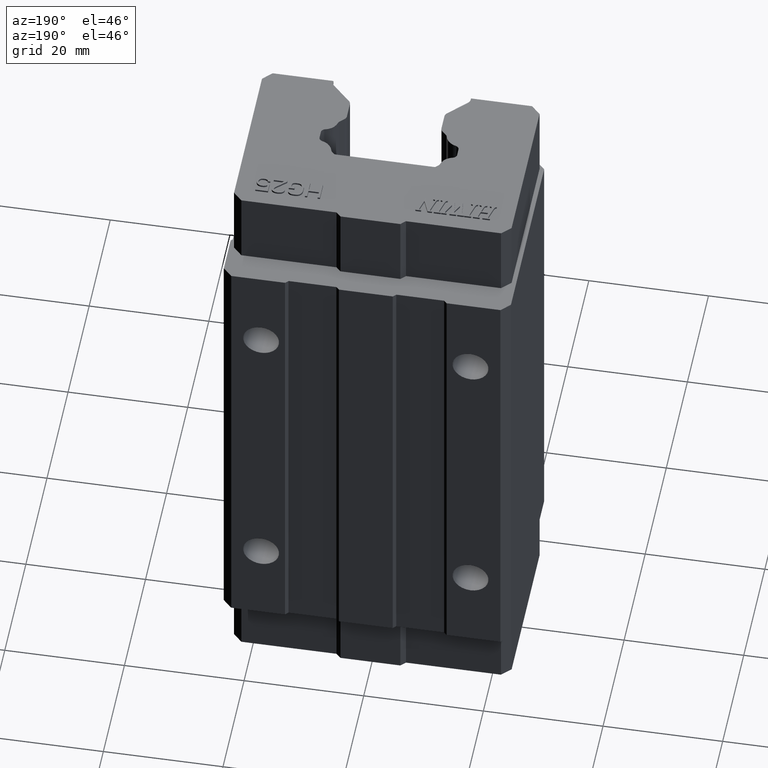
[diagram: clean part render]
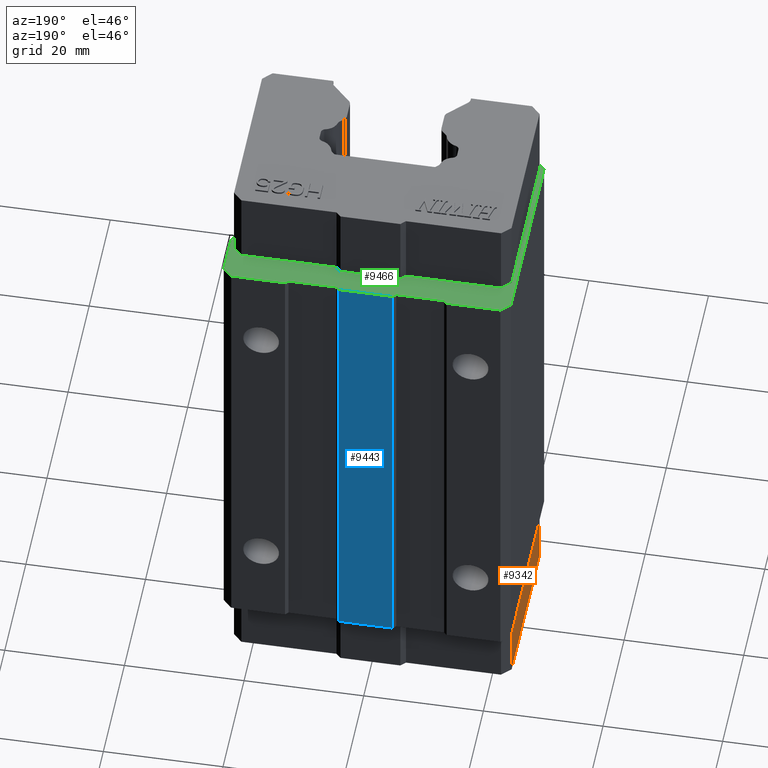
[diagram: same view with three faces highlighted in distinct colors, each labeled with its STEP entity id]
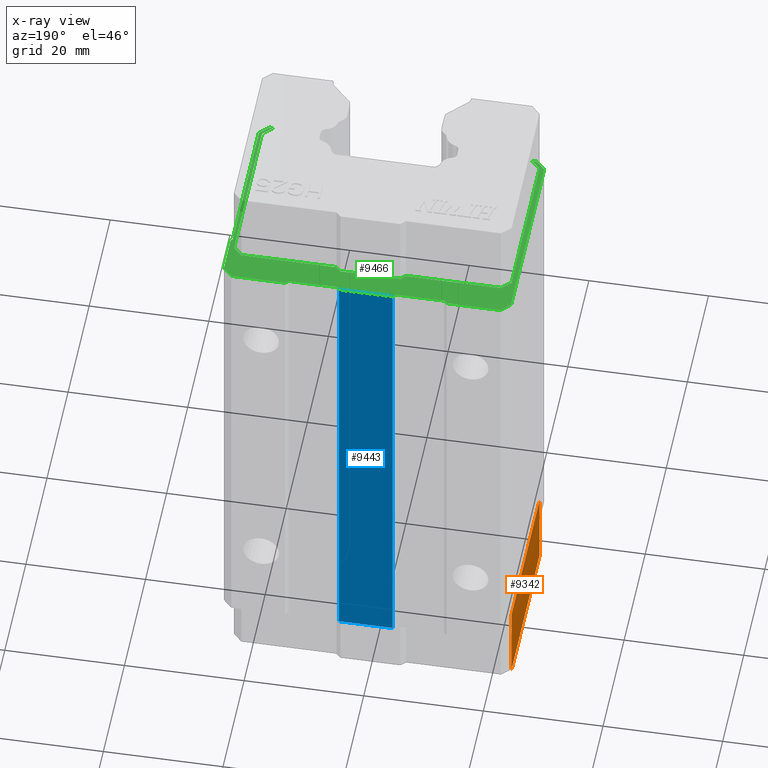
[diagram: x-ray of the same camera — body ghosted, the three highlighted faces saturated]
A machine part, auxiliary view with three faces highlighted in distinct colors.
The next image is the same camera in x-ray (body ghosted, the three faces saturated) — at least one of them is partly hidden behind the body in this view.
Their STEP definitions:

[orange] entity #9342 — the highlighted planar face has unit normal (1, 0, 0).
#3969 = CARTESIAN_POINT ( 'NONE',  ( -23.23429468136999900, -14.96570532254000200, -39.29999999999999700 ) ) ;
#3974 = LINE ( 'NONE', #3969, #4230 ) ;
#4084 = CARTESIAN_POINT ( 'NONE',  ( -23.23429468136883000, 11.53429467932883100, -52.29999999999999700 ) ) ;
#4104 = DIRECTION ( 'NONE',  ( 0.0000000000000000000, 1.000000000000000000, 0.0000000000000000000 ) ) ;
#4105 = VECTOR ( 'NONE', #4104, 1000.000000000000000 ) ;
#4106 = CARTESIAN_POINT ( 'NONE',  ( -23.23429468136999900, 11.53429467932999900, -52.29999999999999700 ) ) ;
#4107 = LINE ( 'NONE', #4106, #4105 ) ;
#4108 = CARTESIAN_POINT ( 'NONE',  ( -23.23429468136999900, -14.96570532254000200, -52.29999999999999700 ) ) ;
#4225 = DIRECTION ( 'NONE',  ( 0.0000000000000000000, 0.0000000000000000000, -1.000000000000000000 ) ) ;
#4230 = VECTOR ( 'NONE', #4225, 1000.000000000000000 ) ;
#4454 = LINE ( 'NONE', #4512, #4511 ) ;
#4484 = CARTESIAN_POINT ( 'NONE',  ( -23.23429468136999900, -14.96570532254000200, -39.29999999999999700 ) ) ;
#4505 = DIRECTION ( 'NONE',  ( 0.0000000000000000000, 0.0000000000000000000, -1.000000000000000000 ) ) ;
#4506 = VECTOR ( 'NONE', #4505, 1000.000000000000000 ) ;
#4507 = CARTESIAN_POINT ( 'NONE',  ( -23.23429468136531600, 11.53429467932531900, -39.29999999999999700 ) ) ;
#4508 = LINE ( 'NONE', #4507, #4506 ) ;
#4509 = CARTESIAN_POINT ( 'NONE',  ( -23.23429468136883000, 11.53429467932882900, -39.29999999999999700 ) ) ;
#4510 = DIRECTION ( 'NONE',  ( 0.0000000000000000000, 1.000000000000000000, 0.0000000000000000000 ) ) ;
#4511 = VECTOR ( 'NONE', #4510, 1000.000000000000000 ) ;
#4512 = CARTESIAN_POINT ( 'NONE',  ( -23.23429468136999900, 0.0000000000000000000, -39.29999999999999700 ) ) ;
#4540 = DIRECTION ( 'NONE',  ( 0.0000000000000000000, 0.0000000000000000000, -1.000000000000000000 ) ) ;
#4541 = DIRECTION ( 'NONE',  ( 1.000000000000000000, 0.0000000000000000000, 0.0000000000000000000 ) ) ;
#4542 = CARTESIAN_POINT ( 'NONE',  ( -23.23429468136999900, 11.53429467932999900, -39.29999999999999700 ) ) ;
#4543 = AXIS2_PLACEMENT_3D ( 'NONE', #4542, #4541, #4540 ) ;
#4544 = PLANE ( 'NONE',  #4543 ) ;
#4545 = FACE_OUTER_BOUND ( 'NONE', #9343, .T. ) ;
#9039 = VERTEX_POINT ( 'NONE', #4084 ) ;
#9062 = VERTEX_POINT ( 'NONE', #4108 ) ;
#9064 = EDGE_CURVE ( 'NONE', #9062, #9039, #4107, .T. ) ;
#9318 = ORIENTED_EDGE ( 'NONE', *, *, #9064, .F. ) ;
#9319 = ORIENTED_EDGE ( 'NONE', *, *, #9341, .F. ) ;
#9320 = ORIENTED_EDGE ( 'NONE', *, *, #9321, .T. ) ;
#9321 = EDGE_CURVE ( 'NONE', #9339, #9322, #4454, .T. ) ;
#9322 = VERTEX_POINT ( 'NONE', #4509 ) ;
#9323 = ORIENTED_EDGE ( 'NONE', *, *, #9324, .T. ) ;
#9324 = EDGE_CURVE ( 'NONE', #9322, #9039, #4508, .T. ) ;
#9339 = VERTEX_POINT ( 'NONE', #4484 ) ;
#9341 = EDGE_CURVE ( 'NONE', #9339, #9062, #3974, .T. ) ;
#9342 = ADVANCED_FACE ( 'NONE', ( #4545 ), #4544, .F. ) ;
#9343 = EDGE_LOOP ( 'NONE', ( #9318, #9319, #9320, #9323 ) ) ;

[blue] entity #9443 — the highlighted planar face has unit normal (0, 1, 0).
#4165 = LINE ( 'NONE', #4224, #4223 ) ;
#4220 = CARTESIAN_POINT ( 'NONE',  ( -4.500000000000001800, 18.00000000000000400, 39.30000000000001800 ) ) ;
#4221 = CARTESIAN_POINT ( 'NONE',  ( -4.500000000000001800, 18.00000000000000400, -39.29999999999999700 ) ) ;
#4222 = DIRECTION ( 'NONE',  ( 0.0000000000000000000, 0.0000000000000000000, 1.000000000000000000 ) ) ;
#4223 = VECTOR ( 'NONE', #4222, 1000.000000000000000 ) ;
#4224 = CARTESIAN_POINT ( 'NONE',  ( -4.500000000000000900, 18.00000000000000400, -39.29999999999999700 ) ) ;
#4248 = CARTESIAN_POINT ( 'NONE',  ( 4.500000000000000900, 18.00000000000000400, 39.30000000000000400 ) ) ;
#4249 = DIRECTION ( 'NONE',  ( 0.0000000000000000000, 0.0000000000000000000, -1.000000000000000000 ) ) ;
#4250 = VECTOR ( 'NONE', #4249, 1000.000000000000000 ) ;
#4251 = CARTESIAN_POINT ( 'NONE',  ( 4.500000000000000900, 18.00000000000000400, -39.29999999999999700 ) ) ;
#4252 = LINE ( 'NONE', #4251, #4250 ) ;
#4253 = CARTESIAN_POINT ( 'NONE',  ( 4.500000000000000900, 18.00000000000000400, -39.29999999999999700 ) ) ;
#4681 = DIRECTION ( 'NONE',  ( -1.000000000000000000, 0.0000000000000000000, 0.0000000000000000000 ) ) ;
#4682 = VECTOR ( 'NONE', #4681, 1000.000000000000000 ) ;
#4683 = CARTESIAN_POINT ( 'NONE',  ( 0.0000000000000000000, 18.00000000000000400, -39.29999999999999700 ) ) ;
#4684 = LINE ( 'NONE', #4683, #4682 ) ;
#4685 = DIRECTION ( 'NONE',  ( 0.0000000000000000000, 0.0000000000000000000, 1.000000000000000000 ) ) ;
#4686 = DIRECTION ( 'NONE',  ( 0.0000000000000000000, 1.000000000000000000, 0.0000000000000000000 ) ) ;
#4687 = CARTESIAN_POINT ( 'NONE',  ( 4.500000000000000900, 18.00000000000000400, -39.29999999999999700 ) ) ;
#4688 = AXIS2_PLACEMENT_3D ( 'NONE', #4687, #4686, #4685 ) ;
#4689 = PLANE ( 'NONE',  #4688 ) ;
#4690 = FACE_OUTER_BOUND ( 'NONE', #9444, .T. ) ;
#4750 = DIRECTION ( 'NONE',  ( -1.000000000000000000, 0.0000000000000000000, 0.0000000000000000000 ) ) ;
#4751 = VECTOR ( 'NONE', #4750, 1000.000000000000000 ) ;
#4752 = CARTESIAN_POINT ( 'NONE',  ( 0.0000000000000000000, 18.00000000000000400, 39.29999999999999700 ) ) ;
#4753 = LINE ( 'NONE', #4752, #4751 ) ;
#9149 = EDGE_CURVE ( 'NONE', #9150, #9151, #4165, .T. ) ;
#9150 = VERTEX_POINT ( 'NONE', #4221 ) ;
#9151 = VERTEX_POINT ( 'NONE', #4220 ) ;
#9170 = VERTEX_POINT ( 'NONE', #4253 ) ;
#9172 = EDGE_CURVE ( 'NONE', #9173, #9170, #4252, .T. ) ;
#9173 = VERTEX_POINT ( 'NONE', #4248 ) ;
#9443 = ADVANCED_FACE ( 'NONE', ( #4690 ), #4689, .T. ) ;
#9444 = EDGE_LOOP ( 'NONE', ( #9445, #9446, #9503, #9504 ) ) ;
#9445 = ORIENTED_EDGE ( 'NONE', *, *, #9172, .T. ) ;
#9446 = ORIENTED_EDGE ( 'NONE', *, *, #9447, .T. ) ;
#9447 = EDGE_CURVE ( 'NONE', #9170, #9150, #4684, .T. ) ;
#9503 = ORIENTED_EDGE ( 'NONE', *, *, #9149, .T. ) ;
#9504 = ORIENTED_EDGE ( 'NONE', *, *, #9505, .F. ) ;
#9505 = EDGE_CURVE ( 'NONE', #9173, #9151, #4753, .T. ) ;

[green] entity #9466 — the highlighted planar face has unit normal (0, 0, 1).
#3902 = CARTESIAN_POINT ( 'NONE',  ( 4.965705321706999500, 13.83429467945999900, 39.29999999999999000 ) ) ;
#3903 = DIRECTION ( 'NONE',  ( -0.7071067806243975800, 0.7071067817486974500, 0.0000000000000000000 ) ) ;
#3904 = VECTOR ( 'NONE', #3903, 1000.000000000000100 ) ;
#3905 = CARTESIAN_POINT ( 'NONE',  ( 5.765705320705000000, 13.03429467918999900, 39.29999999999999700 ) ) ;
#3906 = LINE ( 'NONE', #3905, #3904 ) ;
#3908 = CARTESIAN_POINT ( 'NONE',  ( 5.765705320705000000, 13.03429467918999900, 39.29999999999999000 ) ) ;
#3930 = CARTESIAN_POINT ( 'NONE',  ( -5.834294679362132600, 13.03429467919008800, 39.29999999999999000 ) ) ;
#3931 = DIRECTION ( 'NONE',  ( -0.7071067811858974300, -0.7071067811871975000, 0.0000000000000000000 ) ) ;
#3932 = VECTOR ( 'NONE', #3931, 1000.000000000000100 ) ;
#3933 = CARTESIAN_POINT ( 'NONE',  ( -5.034294679093999700, 13.83429467945999900, 39.29999999999999700 ) ) ;
#3934 = LINE ( 'NONE', #3933, #3932 ) ;
#3936 = CARTESIAN_POINT ( 'NONE',  ( -5.034294679093999700, 13.83429467945999900, 39.29999999999999000 ) ) ;
#4132 = CARTESIAN_POINT ( 'NONE',  ( 23.69999999999999900, 9.699999999999999300, 39.29999999999999700 ) ) ;
#4166 = CARTESIAN_POINT ( 'NONE',  ( 21.63141064662000100, -16.49999999993000100, 39.29999999999999700 ) ) ;
#4167 = DIRECTION ( 'NONE',  ( -1.000000000000000000, 0.0000000000000000000, 0.0000000000000000000 ) ) ;
#4168 = VECTOR ( 'NONE', #4167, 1000.000000000000000 ) ;
#4169 = CARTESIAN_POINT ( 'NONE',  ( 11.50000000000000000, -16.49999999993000100, 39.29999999999999700 ) ) ;
#4170 = LINE ( 'NONE', #4169, #4168 ) ;
#4171 = CARTESIAN_POINT ( 'NONE',  ( 22.20000000000000300, -16.49999999993000100, 39.30000000000000400 ) ) ;
#4186 = CARTESIAN_POINT ( 'NONE',  ( 24.00000000000005300, 9.999999999999946700, 39.29999999999999700 ) ) ;
#4193 = CARTESIAN_POINT ( 'NONE',  ( 5.000000000000000900, 17.50000000000000000, 39.30000000000001800 ) ) ;
#4205 = DIRECTION ( 'NONE',  ( 0.7071067811865975300, 0.7071067811864976100, 0.0000000000000000000 ) ) ;
#4206 = VECTOR ( 'NONE', #4205, 1000.000000000000100 ) ;
#4207 = CARTESIAN_POINT ( 'NONE',  ( 13.50000000000000000, 18.00000000000000400, 39.29999999999999700 ) ) ;
#4208 = LINE ( 'NONE', #4207, #4206 ) ;
#4209 = CARTESIAN_POINT ( 'NONE',  ( 12.99999999999998400, 17.50000000000001800, 39.29999999999999700 ) ) ;
#4210 = CARTESIAN_POINT ( 'NONE',  ( -5.000000000000000900, 17.50000000000000000, 39.30000000000000400 ) ) ;
#4220 = CARTESIAN_POINT ( 'NONE',  ( -4.500000000000001800, 18.00000000000000400, 39.30000000000001800 ) ) ;
#4231 = CARTESIAN_POINT ( 'NONE',  ( 13.50000000000000200, 17.99999999999994300, 39.29999999999999700 ) ) ;
#4248 = CARTESIAN_POINT ( 'NONE',  ( 4.500000000000000900, 18.00000000000000400, 39.30000000000000400 ) ) ;
#4269 = CARTESIAN_POINT ( 'NONE',  ( -22.50000000000000000, -16.49999999993000100, 39.29999999999999700 ) ) ;
#4270 = DIRECTION ( 'NONE',  ( -1.000000000000000000, 0.0000000000000000000, 0.0000000000000000000 ) ) ;
#4271 = VECTOR ( 'NONE', #4270, 1000.000000000000000 ) ;
#4272 = CARTESIAN_POINT ( 'NONE',  ( -22.50000000000000000, -16.49999999993000100, 39.29999999999999700 ) ) ;
#4273 = LINE ( 'NONE', #4272, #4271 ) ;
#4274 = CARTESIAN_POINT ( 'NONE',  ( -21.70000000397978500, -16.49999999992989100, 39.29999999999999000 ) ) ;
#4279 = DIRECTION ( 'NONE',  ( -0.7071067811867974800, -0.7071067811862974400, 0.0000000000000000000 ) ) ;
#4280 = VECTOR ( 'NONE', #4279, 1000.000000000000100 ) ;
#4281 = CARTESIAN_POINT ( 'NONE',  ( 23.69999999999999900, 9.700000000000001100, 39.29999999999999700 ) ) ;
#4282 = LINE ( 'NONE', #4281, #4280 ) ;
#4291 = DIRECTION ( 'NONE',  ( 0.7071067811865474600, -0.7071067811865474600, 0.0000000000000000000 ) ) ;
#4292 = VECTOR ( 'NONE', #4291, 1000.000000000000100 ) ;
#4293 = CARTESIAN_POINT ( 'NONE',  ( -13.00000000000000200, 17.50000000000000000, 39.30000000000002600 ) ) ;
#4294 = LINE ( 'NONE', #4293, #4292 ) ;
#4295 = CARTESIAN_POINT ( 'NONE',  ( -13.50000000000000200, 18.00000000000000400, 39.30000000000000400 ) ) ;
#4305 = CARTESIAN_POINT ( 'NONE',  ( -13.00000000000000200, 17.50000000000000000, 39.30000000000001800 ) ) ;
#4317 = DIRECTION ( 'NONE',  ( 0.7071067811865474600, 0.7071067811865474600, 0.0000000000000000000 ) ) ;
#4318 = VECTOR ( 'NONE', #4317, 1000.000000000000100 ) ;
#4319 = CARTESIAN_POINT ( 'NONE',  ( -4.500000000000000900, 18.00000000000000400, 39.30000000000002600 ) ) ;
#4320 = LINE ( 'NONE', #4319, #4318 ) ;
#4332 = DIRECTION ( 'NONE',  ( 1.000000000000000000, 0.0000000000000000000, 0.0000000000000000000 ) ) ;
#4333 = VECTOR ( 'NONE', #4332, 1000.000000000000000 ) ;
#4334 = CARTESIAN_POINT ( 'NONE',  ( 0.0000000000000000000, 13.83429467945999900, 39.29999999999999700 ) ) ;
#4335 = LINE ( 'NONE', #4334, #4333 ) ;
#4348 = DIRECTION ( 'NONE',  ( 0.7071067811865474600, -0.7071067811865474600, 0.0000000000000000000 ) ) ;
#4349 = VECTOR ( 'NONE', #4348, 1000.000000000000100 ) ;
#4350 = CARTESIAN_POINT ( 'NONE',  ( 5.000000000000000000, 17.50000000000000000, 39.30000000000002600 ) ) ;
#4354 = LINE ( 'NONE', #4350, #4349 ) ;
#4376 = DIRECTION ( 'NONE',  ( 0.7071067811889039100, 0.7071067811841911200, 0.0000000000000000000 ) ) ;
#4377 = VECTOR ( 'NONE', #4376, 1000.000000000000200 ) ;
#4378 = CARTESIAN_POINT ( 'NONE',  ( -23.23429468136999900, 11.53429467932999900, 39.29999999999999700 ) ) ;
#4379 = LINE ( 'NONE', #4378, #4377 ) ;
#4380 = CARTESIAN_POINT ( 'NONE',  ( -21.73429468150000000, 13.03429467918999900, 39.29999999999999700 ) ) ;
#4388 = DIRECTION ( 'NONE',  ( -0.7071067808869830900, -0.7071067814861119500, 0.0000000000000000000 ) ) ;
#4389 = VECTOR ( 'NONE', #4388, 1000.000000000000000 ) ;
#4390 = CARTESIAN_POINT ( 'NONE',  ( 23.16570532271000000, -14.96570532254000200, 39.29999999999999700 ) ) ;
#4391 = LINE ( 'NONE', #4390, #4389 ) ;
#4403 = CARTESIAN_POINT ( 'NONE',  ( -23.23429468136999900, -14.96570532254000300, 39.29999999999999700 ) ) ;
#4404 = DIRECTION ( 'NONE',  ( 0.0000000000000000000, 1.000000000000000000, 0.0000000000000000000 ) ) ;
#4405 = VECTOR ( 'NONE', #4404, 1000.000000000000000 ) ;
#4406 = CARTESIAN_POINT ( 'NONE',  ( -23.23429468136999900, 0.0000000000000000000, 39.29999999999999700 ) ) ;
#4407 = LINE ( 'NONE', #4406, #4405 ) ;
#4408 = CARTESIAN_POINT ( 'NONE',  ( -23.23429468136765800, 11.53429467932765800, 39.29999999999999700 ) ) ;
#4425 = DIRECTION ( 'NONE',  ( 0.0000000000000000000, -1.000000000000000000, 0.0000000000000000000 ) ) ;
#4426 = VECTOR ( 'NONE', #4425, 1000.000000000000000 ) ;
#4427 = CARTESIAN_POINT ( 'NONE',  ( 23.16570532271000000, 0.0000000000000000000, 39.29999999999999700 ) ) ;
#4428 = LINE ( 'NONE', #4427, #4426 ) ;
#4429 = CARTESIAN_POINT ( 'NONE',  ( 23.16570532271024900, -14.96570532254024700, 39.29999999999999700 ) ) ;
#4440 = DIRECTION ( 'NONE',  ( 0.7071067811889039100, -0.7071067811841911200, 0.0000000000000000000 ) ) ;
#4441 = VECTOR ( 'NONE', #4440, 1000.000000000000200 ) ;
#4442 = CARTESIAN_POINT ( 'NONE',  ( 21.66570532284000100, 13.03429467918999900, 39.29999999999999700 ) ) ;
#4443 = LINE ( 'NONE', #4442, #4441 ) ;
#4444 = DIRECTION ( 'NONE',  ( -0.7071067811865466800, 0.7071067811865483500, 0.0000000000000000000 ) ) ;
#4445 = VECTOR ( 'NONE', #4444, 1000.000000000000000 ) ;
#4446 = CARTESIAN_POINT ( 'NONE',  ( -21.70000000398000100, -16.49999999993000100, 39.29999999999999700 ) ) ;
#4447 = LINE ( 'NONE', #4446, #4445 ) ;
#4461 = DIRECTION ( 'NONE',  ( 1.000000000000000000, 0.0000000000000000000, 0.0000000000000000000 ) ) ;
#4462 = VECTOR ( 'NONE', #4461, 1000.000000000000000 ) ;
#4463 = CARTESIAN_POINT ( 'NONE',  ( 0.0000000000000000000, 13.03429467918999900, 39.29999999999999700 ) ) ;
#4464 = LINE ( 'NONE', #4463, #4462 ) ;
#4465 = CARTESIAN_POINT ( 'NONE',  ( 23.16570532271000000, 11.53429467932999900, 39.29999999999999700 ) ) ;
#4476 = DIRECTION ( 'NONE',  ( 1.000000000000000000, 0.0000000000000000000, 0.0000000000000000000 ) ) ;
#4477 = VECTOR ( 'NONE', #4476, 1000.000000000000000 ) ;
#4478 = CARTESIAN_POINT ( 'NONE',  ( 0.0000000000000000000, 13.03429467918999900, 39.29999999999999700 ) ) ;
#4479 = LINE ( 'NONE', #4478, #4477 ) ;
#4480 = CARTESIAN_POINT ( 'NONE',  ( 21.66570532284249900, 13.03429467919249900, 39.29999999999999700 ) ) ;
#4584 = DIRECTION ( 'NONE',  ( -0.7071067811865474600, 0.7071067811865474600, 0.0000000000000000000 ) ) ;
#4585 = VECTOR ( 'NONE', #4584, 1000.000000000000100 ) ;
#4586 = CARTESIAN_POINT ( 'NONE',  ( 24.00000000000000000, 16.50000000000000000, 39.29999999999999700 ) ) ;
#4587 = LINE ( 'NONE', #4586, #4585 ) ;
#4588 = CARTESIAN_POINT ( 'NONE',  ( 22.50000000000005000, 18.00000000000005700, 39.29999999999999700 ) ) ;
#4617 = CARTESIAN_POINT ( 'NONE',  ( 24.00000000000000000, 16.50000000000000000, 39.29999999999999700 ) ) ;
#4633 = DIRECTION ( 'NONE',  ( 0.0000000000000000000, 1.000000000000000000, 0.0000000000000000000 ) ) ;
#4634 = VECTOR ( 'NONE', #4633, 1000.000000000000000 ) ;
#4635 = CARTESIAN_POINT ( 'NONE',  ( 23.69999999999999900, 0.0000000000000000000, 39.29999999999999700 ) ) ;
#4636 = LINE ( 'NONE', #4635, #4634 ) ;
#4647 = DIRECTION ( 'NONE',  ( -1.000000000000000000, 0.0000000000000000000, 0.0000000000000000000 ) ) ;
#4648 = VECTOR ( 'NONE', #4647, 1000.000000000000000 ) ;
#4649 = CARTESIAN_POINT ( 'NONE',  ( 0.0000000000000000000, 17.50000000000000000, 39.29999999999999700 ) ) ;
#4650 = LINE ( 'NONE', #4649, #4648 ) ;
#4669 = DIRECTION ( 'NONE',  ( 0.7071067811865471300, 0.7071067811865479100, 0.0000000000000000000 ) ) ;
#4670 = VECTOR ( 'NONE', #4669, 1000.000000000000000 ) ;
#4671 = CARTESIAN_POINT ( 'NONE',  ( 22.19999999999999900, -16.49999999993000100, 39.29999999999999700 ) ) ;
#4672 = LINE ( 'NONE', #4671, #4670 ) ;
#4673 = CARTESIAN_POINT ( 'NONE',  ( 23.69999999999999900, -14.99999999993000100, 39.30000000000000400 ) ) ;
#4691 = DIRECTION ( 'NONE',  ( -1.000000000000000000, 0.0000000000000000000, 0.0000000000000000000 ) ) ;
#4692 = VECTOR ( 'NONE', #4691, 1000.000000000000000 ) ;
#4693 = CARTESIAN_POINT ( 'NONE',  ( 0.0000000000000000000, 17.50000000000000000, 39.29999999999999700 ) ) ;
#4694 = LINE ( 'NONE', #4693, #4692 ) ;
#4719 = DIRECTION ( 'NONE',  ( -1.000000000000000000, 0.0000000000000000000, 0.0000000000000000000 ) ) ;
#4720 = VECTOR ( 'NONE', #4719, 1000.000000000000000 ) ;
#4721 = CARTESIAN_POINT ( 'NONE',  ( 0.0000000000000000000, 18.00000000000000400, 39.29999999999999700 ) ) ;
#4722 = LINE ( 'NONE', #4721, #4720 ) ;
#4723 = DIRECTION ( 'NONE',  ( 1.000000000000000000, 0.0000000000000000000, 0.0000000000000000000 ) ) ;
#4724 = DIRECTION ( 'NONE',  ( 0.0000000000000000000, 0.0000000000000000000, 1.000000000000000000 ) ) ;
#4725 = CARTESIAN_POINT ( 'NONE',  ( 0.0000000000000000000, 0.0000000000000000000, 39.29999999999999700 ) ) ;
#4726 = AXIS2_PLACEMENT_3D ( 'NONE', #4725, #4724, #4723 ) ;
#4727 = PLANE ( 'NONE',  #4726 ) ;
#4728 = FACE_OUTER_BOUND ( 'NONE', #9467, .T. ) ;
#4735 = DIRECTION ( 'NONE',  ( 0.0000000000000000000, 1.000000000000000000, 0.0000000000000000000 ) ) ;
#4736 = VECTOR ( 'NONE', #4735, 1000.000000000000000 ) ;
#4737 = CARTESIAN_POINT ( 'NONE',  ( 24.00000000000000000, 0.0000000000000000000, 39.29999999999999700 ) ) ;
#4738 = LINE ( 'NONE', #4737, #4736 ) ;
#4739 = DIRECTION ( 'NONE',  ( -1.000000000000000000, 0.0000000000000000000, 0.0000000000000000000 ) ) ;
#4740 = VECTOR ( 'NONE', #4739, 1000.000000000000000 ) ;
#4741 = CARTESIAN_POINT ( 'NONE',  ( 0.0000000000000000000, 18.00000000000000400, 39.29999999999999700 ) ) ;
#4742 = LINE ( 'NONE', #4741, #4740 ) ;
#4750 = DIRECTION ( 'NONE',  ( -1.000000000000000000, 0.0000000000000000000, 0.0000000000000000000 ) ) ;
#4751 = VECTOR ( 'NONE', #4750, 1000.000000000000000 ) ;
#4752 = CARTESIAN_POINT ( 'NONE',  ( 0.0000000000000000000, 18.00000000000000400, 39.29999999999999700 ) ) ;
#4753 = LINE ( 'NONE', #4752, #4751 ) ;
#4754 = CARTESIAN_POINT ( 'NONE',  ( -22.50000000000000400, 18.00000000000000400, 39.30000000000000400 ) ) ;
#4764 = DIRECTION ( 'NONE',  ( 0.7071067811865479100, -0.7071067811865471300, 0.0000000000000000000 ) ) ;
#4765 = VECTOR ( 'NONE', #4764, 1000.000000000000000 ) ;
#4766 = CARTESIAN_POINT ( 'NONE',  ( -24.00000000000000000, -14.99999999993000100, 39.29999999999999700 ) ) ;
#4767 = LINE ( 'NONE', #4766, #4765 ) ;
#4772 = CARTESIAN_POINT ( 'NONE',  ( -24.00000000000000000, -14.99999999992999900, 39.30000000000001800 ) ) ;
#4776 = CARTESIAN_POINT ( 'NONE',  ( -22.50000000000000000, 18.00000000000000400, 39.30000000000002600 ) ) ;
#4777 = LINE ( 'NONE', #4776, #4834 ) ;
#4793 = DIRECTION ( 'NONE',  ( 0.0000000000000000000, 1.000000000000000000, 0.0000000000000000000 ) ) ;
#4794 = VECTOR ( 'NONE', #4793, 1000.000000000000000 ) ;
#4795 = CARTESIAN_POINT ( 'NONE',  ( -24.00000000000000000, 16.50000000000000000, 39.29999999999999700 ) ) ;
#4796 = LINE ( 'NONE', #4795, #4794 ) ;
#4832 = CARTESIAN_POINT ( 'NONE',  ( -24.00000000000000000, 16.50000000000000000, 39.30000000000000400 ) ) ;
#4833 = DIRECTION ( 'NONE',  ( 0.7071067811865474600, 0.7071067811865474600, 0.0000000000000000000 ) ) ;
#4834 = VECTOR ( 'NONE', #4833, 1000.000000000000100 ) ;
#8681 = VERTEX_POINT ( 'NONE', #3908 ) ;
#8684 = EDGE_CURVE ( 'NONE', #8681, #8685, #3906, .T. ) ;
#8685 = VERTEX_POINT ( 'NONE', #3902 ) ;
#8697 = VERTEX_POINT ( 'NONE', #3936 ) ;
#8700 = EDGE_CURVE ( 'NONE', #8697, #8701, #3934, .T. ) ;
#8701 = VERTEX_POINT ( 'NONE', #3930 ) ;
#9122 = VERTEX_POINT ( 'NONE', #4132 ) ;
#9128 = VERTEX_POINT ( 'NONE', #4186 ) ;
#9137 = VERTEX_POINT ( 'NONE', #4171 ) ;
#9139 = EDGE_CURVE ( 'NONE', #9137, #9140, #4170, .T. ) ;
#9140 = VERTEX_POINT ( 'NONE', #4166 ) ;
#9151 = VERTEX_POINT ( 'NONE', #4220 ) ;
#9157 = VERTEX_POINT ( 'NONE', #4210 ) ;
#9159 = VERTEX_POINT ( 'NONE', #4209 ) ;
#9161 = EDGE_CURVE ( 'NONE', #9159, #9182, #4208, .T. ) ;
#9167 = VERTEX_POINT ( 'NONE', #4193 ) ;
#9173 = VERTEX_POINT ( 'NONE', #4248 ) ;
#9182 = VERTEX_POINT ( 'NONE', #4231 ) ;
#9189 = EDGE_CURVE ( 'NONE', #9128, #9122, #4282, .T. ) ;
#9196 = VERTEX_POINT ( 'NONE', #4274 ) ;
#9198 = EDGE_CURVE ( 'NONE', #9196, #9199, #4273, .T. ) ;
#9199 = VERTEX_POINT ( 'NONE', #4269 ) ;
#9211 = EDGE_CURVE ( 'NONE', #9157, #9151, #4320, .T. ) ;
#9217 = VERTEX_POINT ( 'NONE', #4305 ) ;
#9223 = VERTEX_POINT ( 'NONE', #4295 ) ;
#9225 = EDGE_CURVE ( 'NONE', #9223, #9217, #4294, .T. ) ;
#9229 = EDGE_CURVE ( 'NONE', #9173, #9167, #4354, .T. ) ;
#9235 = EDGE_CURVE ( 'NONE', #8697, #8685, #4335, .T. ) ;
#9246 = VERTEX_POINT ( 'NONE', #4380 ) ;
#9248 = EDGE_CURVE ( 'NONE', #9264, #9246, #4379, .T. ) ;
#9264 = VERTEX_POINT ( 'NONE', #4408 ) ;
#9266 = EDGE_CURVE ( 'NONE', #9267, #9264, #4407, .T. ) ;
#9267 = VERTEX_POINT ( 'NONE', #4403 ) ;
#9270 = EDGE_CURVE ( 'NONE', #9286, #9140, #4391, .T. ) ;
#9277 = EDGE_CURVE ( 'NONE', #9196, #9267, #4447, .T. ) ;
#9279 = EDGE_CURVE ( 'NONE', #9294, #9303, #4443, .T. ) ;
#9286 = VERTEX_POINT ( 'NONE', #4429 ) ;
#9288 = EDGE_CURVE ( 'NONE', #9303, #9286, #4428, .T. ) ;
#9294 = VERTEX_POINT ( 'NONE', #4480 ) ;
#9296 = EDGE_CURVE ( 'NONE', #8681, #9294, #4479, .T. ) ;
#9303 = VERTEX_POINT ( 'NONE', #4465 ) ;
#9306 = EDGE_CURVE ( 'NONE', #9246, #8701, #4464, .T. ) ;
#9391 = VERTEX_POINT ( 'NONE', #4588 ) ;
#9393 = EDGE_CURVE ( 'NONE', #9408, #9391, #4587, .T. ) ;
#9399 = EDGE_CURVE ( 'NONE', #9416, #9122, #4636, .T. ) ;
#9408 = VERTEX_POINT ( 'NONE', #4617 ) ;
#9416 = VERTEX_POINT ( 'NONE', #4673 ) ;
#9418 = EDGE_CURVE ( 'NONE', #9137, #9416, #4672, .T. ) ;
#9432 = EDGE_CURVE ( 'NONE', #9157, #9217, #4650, .T. ) ;
#9442 = EDGE_CURVE ( 'NONE', #9159, #9167, #4694, .T. ) ;
#9459 = EDGE_CURVE ( 'NONE', #9391, #9182, #4742, .T. ) ;
#9461 = EDGE_CURVE ( 'NONE', #9128, #9408, #4738, .T. ) ;
#9466 = ADVANCED_FACE ( 'NONE', ( #4728 ), #4727, .T. ) ;
#9467 = EDGE_LOOP ( 'NONE', ( #9468, #9469, #9470, #9471, #9472, #9473, #9474, #9475, #9476, #9542, #9543, #9544, #9545, #9546, #9547, #9548, #9549, #9550, #9551, #9531, #9532, #9533, #9534, #9535, #9536, #9537, #9538, #9539, #9518, #9520 ) ) ;
#9468 = ORIENTED_EDGE ( 'NONE', *, *, #9198, .F. ) ;
#9469 = ORIENTED_EDGE ( 'NONE', *, *, #9277, .T. ) ;
#9470 = ORIENTED_EDGE ( 'NONE', *, *, #9266, .T. ) ;
#9471 = ORIENTED_EDGE ( 'NONE', *, *, #9248, .T. ) ;
#9472 = ORIENTED_EDGE ( 'NONE', *, *, #9306, .T. ) ;
#9473 = ORIENTED_EDGE ( 'NONE', *, *, #8700, .F. ) ;
#9474 = ORIENTED_EDGE ( 'NONE', *, *, #9235, .T. ) ;
#9475 = ORIENTED_EDGE ( 'NONE', *, *, #8684, .F. ) ;
#9476 = ORIENTED_EDGE ( 'NONE', *, *, #9296, .T. ) ;
#9478 = EDGE_CURVE ( 'NONE', #9223, #9502, #4722, .T. ) ;
#9484 = VERTEX_POINT ( 'NONE', #4772 ) ;
#9489 = EDGE_CURVE ( 'NONE', #9484, #9199, #4767, .T. ) ;
#9502 = VERTEX_POINT ( 'NONE', #4754 ) ;
#9505 = EDGE_CURVE ( 'NONE', #9173, #9151, #4753, .T. ) ;
#9518 = ORIENTED_EDGE ( 'NONE', *, *, #9519, .F. ) ;
#9519 = EDGE_CURVE ( 'NONE', #9484, #9541, #4796, .T. ) ;
#9520 = ORIENTED_EDGE ( 'NONE', *, *, #9489, .T. ) ;
#9531 = ORIENTED_EDGE ( 'NONE', *, *, #9161, .F. ) ;
#9532 = ORIENTED_EDGE ( 'NONE', *, *, #9442, .T. ) ;
#9533 = ORIENTED_EDGE ( 'NONE', *, *, #9229, .F. ) ;
#9534 = ORIENTED_EDGE ( 'NONE', *, *, #9505, .T. ) ;
#9535 = ORIENTED_EDGE ( 'NONE', *, *, #9211, .F. ) ;
#9536 = ORIENTED_EDGE ( 'NONE', *, *, #9432, .T. ) ;
#9537 = ORIENTED_EDGE ( 'NONE', *, *, #9225, .F. ) ;
#9538 = ORIENTED_EDGE ( 'NONE', *, *, #9478, .T. ) ;
#9539 = ORIENTED_EDGE ( 'NONE', *, *, #9540, .F. ) ;
#9540 = EDGE_CURVE ( 'NONE', #9541, #9502, #4777, .T. ) ;
#9541 = VERTEX_POINT ( 'NONE', #4832 ) ;
#9542 = ORIENTED_EDGE ( 'NONE', *, *, #9279, .T. ) ;
#9543 = ORIENTED_EDGE ( 'NONE', *, *, #9288, .T. ) ;
#9544 = ORIENTED_EDGE ( 'NONE', *, *, #9270, .T. ) ;
#9545 = ORIENTED_EDGE ( 'NONE', *, *, #9139, .F. ) ;
#9546 = ORIENTED_EDGE ( 'NONE', *, *, #9418, .T. ) ;
#9547 = ORIENTED_EDGE ( 'NONE', *, *, #9399, .T. ) ;
#9548 = ORIENTED_EDGE ( 'NONE', *, *, #9189, .F. ) ;
#9549 = ORIENTED_EDGE ( 'NONE', *, *, #9461, .T. ) ;
#9550 = ORIENTED_EDGE ( 'NONE', *, *, #9393, .T. ) ;
#9551 = ORIENTED_EDGE ( 'NONE', *, *, #9459, .T. ) ;